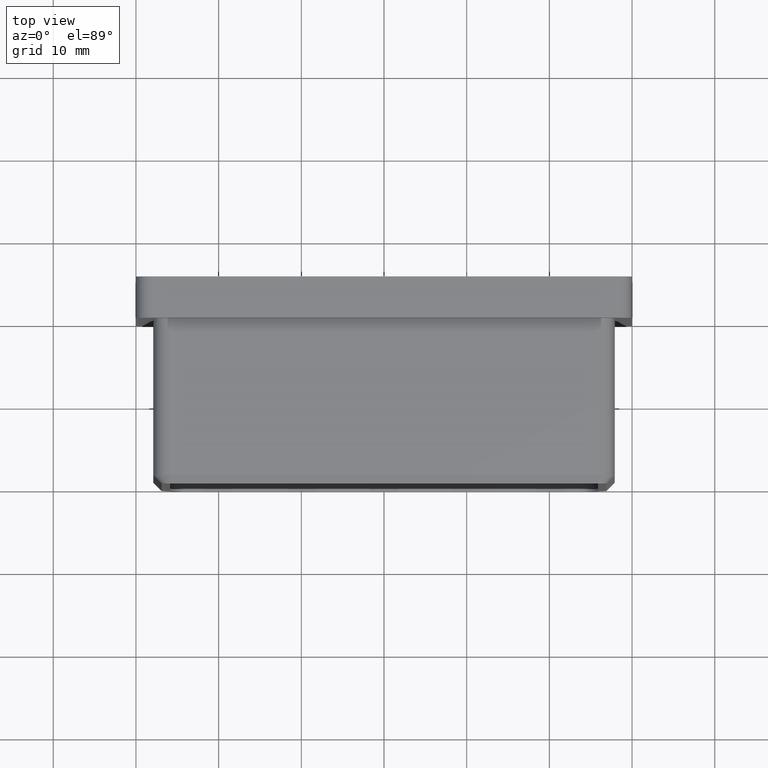
[diagram: clean part render]
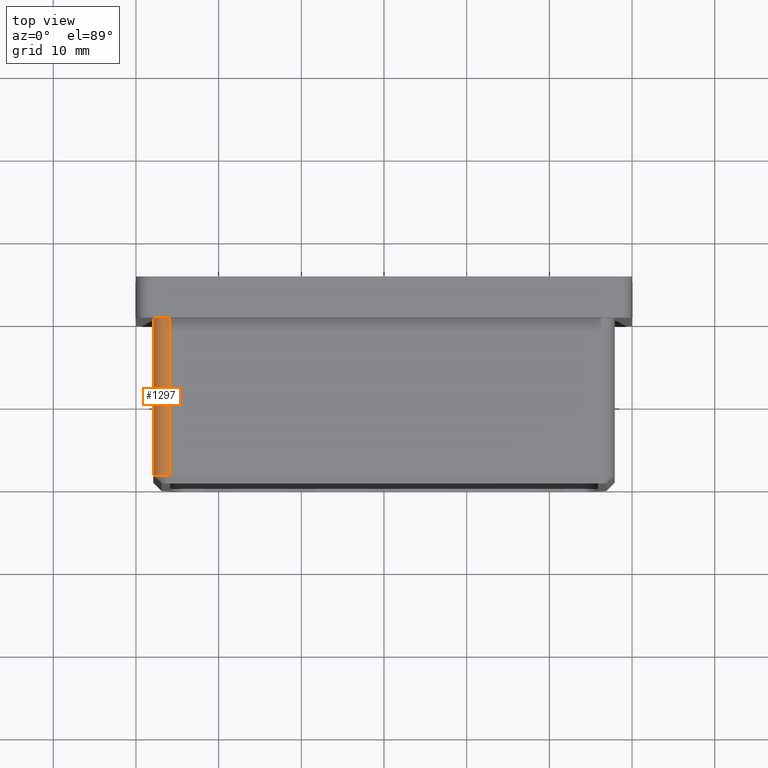
[diagram: same view with one face highlighted and labeled with its STEP entity id]
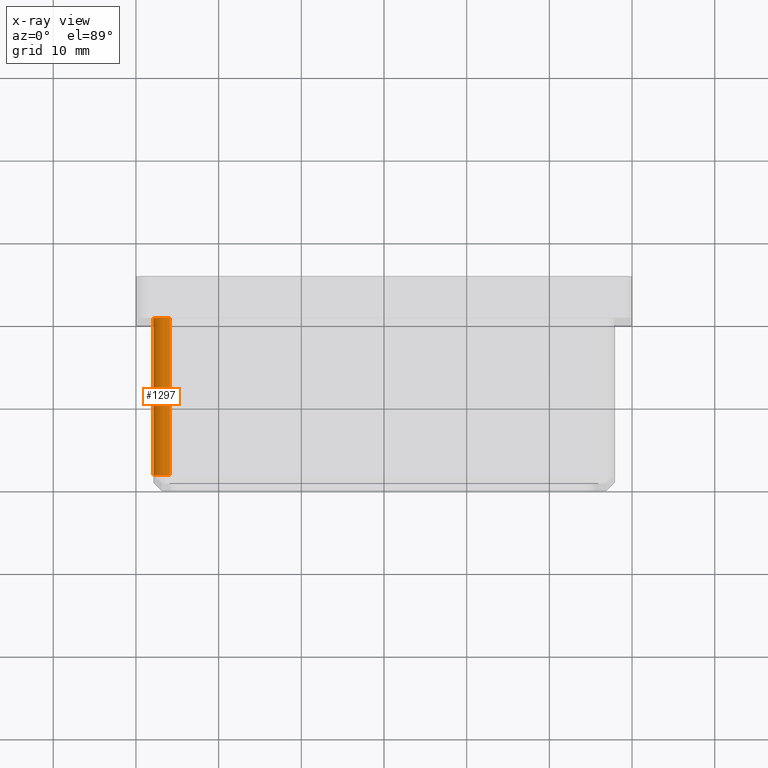
[diagram: x-ray of the same camera — body ghosted, the highlighted face saturated]
A machine part, top view. The second image highlights one B-rep face of the part: STEP entity #1297.
The next image is the same camera in x-ray: the body ghosted, the highlighted face saturated — about 0% of this face is hidden behind the body in this view.
In plain terms, the highlighted cylindrical surface (edge-blend (fillet) strip) has radius 2 mm, axis along (-0, 1, 0).
Its self-contained STEP definition (entity closure, byte-faithful):
#104 = LINE ( 'NONE', #2488, #9082 ) ;
#155 = ORIENTED_EDGE ( 'NONE', *, *, #14334, .F. ) ;
#594 = VERTEX_POINT ( 'NONE', #10063 ) ;
#978 = CIRCLE ( 'NONE', #5739, 2.000000000000001800 ) ;
#1222 = CYLINDRICAL_SURFACE ( 'NONE', #7340, 2.000000000000001800 ) ;
#1297 = ADVANCED_FACE ( 'NONE', ( #12551 ), #1222, .T. ) ;
#2030 = DIRECTION ( 'NONE',  ( 0.0000000000000000000, 1.000000000000000000, 0.0000000000000000000 ) ) ;
#2179 = DIRECTION ( 'NONE',  ( 0.0000000000000000000, 0.0000000000000000000, 1.000000000000000000 ) ) ;
#2488 = CARTESIAN_POINT ( 'NONE',  ( -25.89999999999999100, -20.00000000000000000, 27.89999999999999500 ) ) ;
#3307 = EDGE_CURVE ( 'NONE', #594, #11338, #104, .T. ) ;
#3863 = CARTESIAN_POINT ( 'NONE',  ( -27.89999999999999500, -20.00000000000000000, 25.89999999999999100 ) ) ;
#4732 = CARTESIAN_POINT ( 'NONE',  ( -25.89999999999999100, -20.00000000000000000, 25.89999999999999100 ) ) ;
#4785 = DIRECTION ( 'NONE',  ( -0.0000000000000000000, 1.000000000000000000, 0.0000000000000000000 ) ) ;
#4833 = ORIENTED_EDGE ( 'NONE', *, *, #13098, .T. ) ;
#4981 = CARTESIAN_POINT ( 'NONE',  ( -27.89999999999999500, -19.00000000000000000, 25.89999999999999100 ) ) ;
#5093 = ORIENTED_EDGE ( 'NONE', *, *, #3307, .F. ) ;
#5104 = DIRECTION ( 'NONE',  ( 0.0000000000000000000, 0.0000000000000000000, -1.000000000000000000 ) ) ;
#5532 = CIRCLE ( 'NONE', #12821, 2.000000000000001800 ) ;
#5562 = VECTOR ( 'NONE', #6381, 1000.000000000000000 ) ;
#5739 = AXIS2_PLACEMENT_3D ( 'NONE', #10176, #2030, #2179 ) ;
#5805 = CARTESIAN_POINT ( 'NONE',  ( -27.89999999999999500, 0.0000000000000000000, 25.89999999999999100 ) ) ;
#6381 = DIRECTION ( 'NONE',  ( -0.0000000000000000000, 1.000000000000000000, 0.0000000000000000000 ) ) ;
#6421 = EDGE_LOOP ( 'NONE', ( #10731, #4833, #5093, #155 ) ) ;
#7340 = AXIS2_PLACEMENT_3D ( 'NONE', #4732, #4785, #9727 ) ;
#8997 = VERTEX_POINT ( 'NONE', #4981 ) ;
#9082 = VECTOR ( 'NONE', #9557, 1000.000000000000000 ) ;
#9557 = DIRECTION ( 'NONE',  ( -0.0000000000000000000, -1.000000000000000000, -0.0000000000000000000 ) ) ;
#9689 = CARTESIAN_POINT ( 'NONE',  ( -25.89999999999999100, -19.00000000000000000, 25.89999999999999100 ) ) ;
#9727 = DIRECTION ( 'NONE',  ( 0.0000000000000000000, 0.0000000000000000000, 1.000000000000000000 ) ) ;
#10063 = CARTESIAN_POINT ( 'NONE',  ( -25.89999999999999100, 0.0000000000000000000, 27.89999999999999500 ) ) ;
#10176 = CARTESIAN_POINT ( 'NONE',  ( -25.89999999999999100, 0.0000000000000000000, 25.89999999999999100 ) ) ;
#10513 = EDGE_CURVE ( 'NONE', #8997, #10756, #11348, .T. ) ;
#10731 = ORIENTED_EDGE ( 'NONE', *, *, #10513, .F. ) ;
#10756 = VERTEX_POINT ( 'NONE', #5805 ) ;
#11338 = VERTEX_POINT ( 'NONE', #11362 ) ;
#11348 = LINE ( 'NONE', #3863, #5562 ) ;
#11362 = CARTESIAN_POINT ( 'NONE',  ( -25.89999999999999100, -19.00000000000000000, 27.89999999999999500 ) ) ;
#12551 = FACE_OUTER_BOUND ( 'NONE', #6421, .T. ) ;
#12821 = AXIS2_PLACEMENT_3D ( 'NONE', #9689, #13264, #5104 ) ;
#13098 = EDGE_CURVE ( 'NONE', #8997, #11338, #5532, .T. ) ;
#13264 = DIRECTION ( 'NONE',  ( 0.0000000000000000000, 1.000000000000000000, 0.0000000000000000000 ) ) ;
#14334 = EDGE_CURVE ( 'NONE', #10756, #594, #978, .T. ) ;